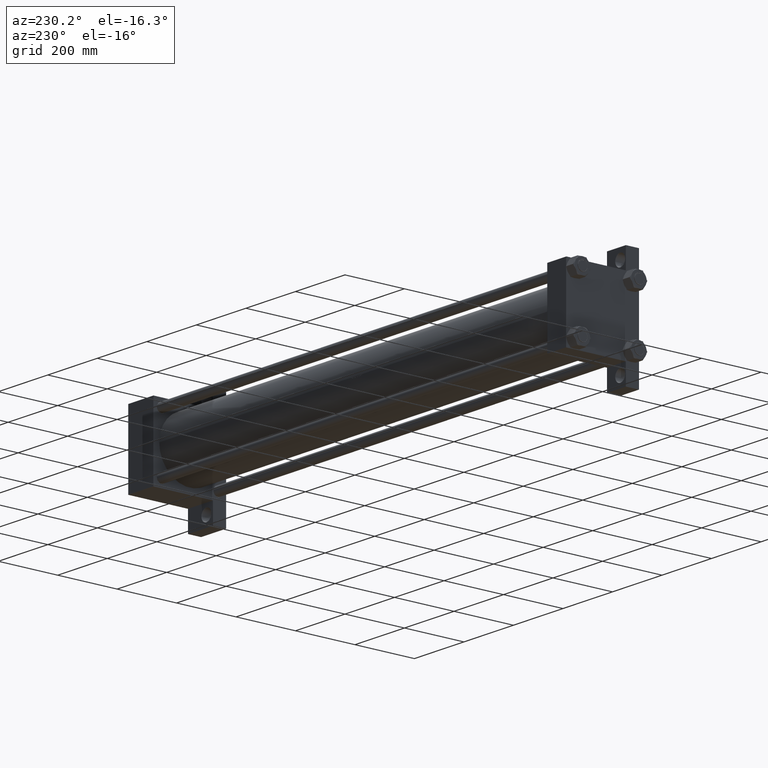
[diagram: clean part render]
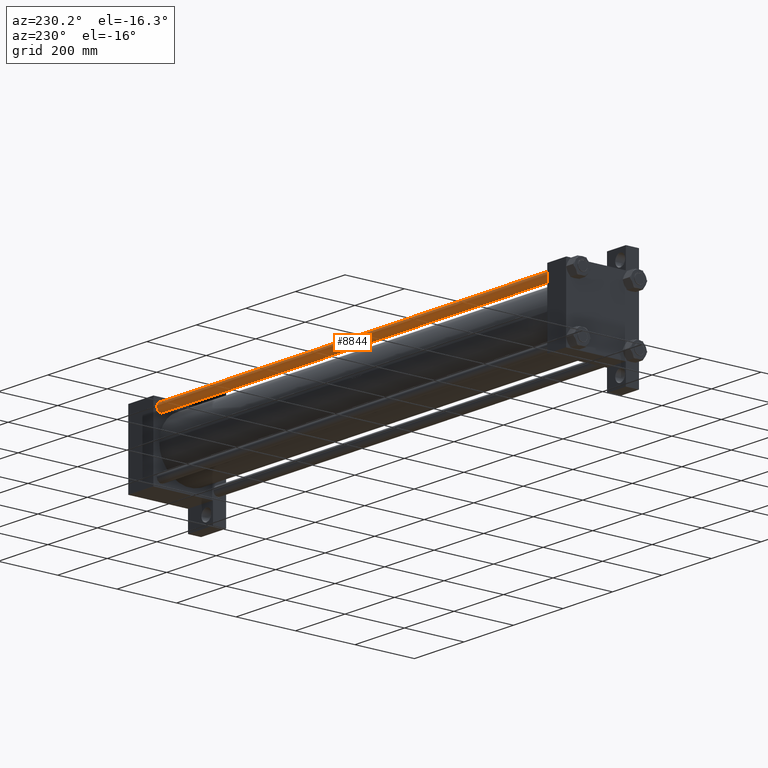
[diagram: same view with one face highlighted and labeled with its STEP entity id]
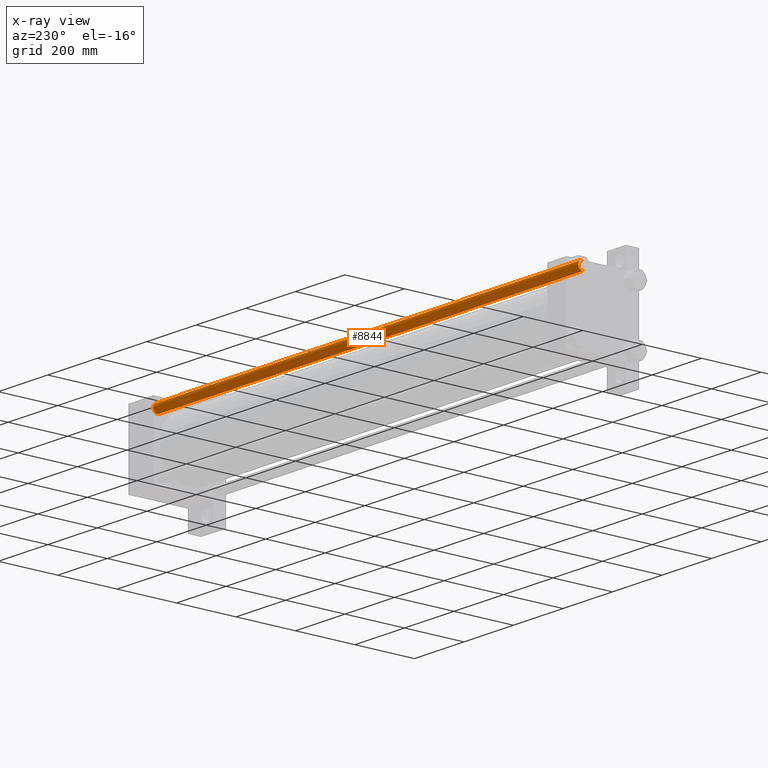
[diagram: x-ray of the same camera — body ghosted, the highlighted face saturated]
A machine part, auxiliary view. The second image highlights one B-rep face of the part: STEP entity #8844.
The next image is the same camera in x-ray: the body ghosted, the highlighted face saturated — about 0% of this face is hidden behind the body in this view.
In plain terms, the highlighted cylindrical surface (edge-blend (fillet) strip) has radius 15 mm, axis along (-1, -0, -0).
Its self-contained STEP definition (entity closure, byte-faithful):
#358 = DIRECTION ( 'NONE',  ( -0.000000000000000000, -0.000000000000000000, -1.000000000000000000 ) ) ;
#565 = CARTESIAN_POINT ( 'NONE',  ( 0.000000000000000000, 0.000000000000000000, 0.5000000000001669775 ) ) ;
#1258 = DIRECTION ( 'NONE',  ( 0.000000000000000000, 0.000000000000000000, -1.000000000000000000 ) ) ;
#3168 = DIRECTION ( 'NONE',  ( -0.000000000000000000, -0.000000000000000000, -1.000000000000000000 ) ) ;
#3406 = ORIENTED_EDGE ( 'NONE', *, *, #24542, .T. ) ;
#7021 = VERTEX_POINT ( 'NONE', #31288 ) ;
#8844 = ADVANCED_FACE ( 'NONE', ( #28538 ), #20252, .T. ) ;
#8941 = EDGE_CURVE ( 'NONE', #20880, #7021, #43850, .T. ) ;
#12130 = CIRCLE ( 'NONE', #42422, 15.00000000000000000 ) ;
#13640 = ORIENTED_EDGE ( 'NONE', *, *, #42656, .T. ) ;
#16608 = DIRECTION ( 'NONE',  ( -0.000000000000000000, -0.000000000000000000, -1.000000000000000000 ) ) ;
#17911 = VERTEX_POINT ( 'NONE', #45234 ) ;
#18854 = ORIENTED_EDGE ( 'NONE', *, *, #8941, .F. ) ;
#20252 = CYLINDRICAL_SURFACE ( 'NONE', #25931, 15.00000000000000000 ) ;
#20880 = VERTEX_POINT ( 'NONE', #33938 ) ;
#21472 = CARTESIAN_POINT ( 'NONE',  ( -15.00000000000000000, 0.000000000000000000, 1718.000000000000000 ) ) ;
#24001 = EDGE_CURVE ( 'NONE', #20880, #17911, #35872, .T. ) ;
#24542 = EDGE_CURVE ( 'NONE', #17911, #33193, #41252, .T. ) ;
#25931 = AXIS2_PLACEMENT_3D ( 'NONE', #47033, #16608, #43127 ) ;
#26162 = DIRECTION ( 'NONE',  ( -0.000000000000000000, -0.000000000000000000, 1.000000000000000000 ) ) ;
#26560 = ORIENTED_EDGE ( 'NONE', *, *, #24001, .T. ) ;
#26685 = VECTOR ( 'NONE', #3168, 1000.000000000000000 ) ;
#28538 = FACE_OUTER_BOUND ( 'NONE', #30625, .T. ) ;
#30625 = EDGE_LOOP ( 'NONE', ( #26560, #3406, #13640, #18854 ) ) ;
#31288 = CARTESIAN_POINT ( 'NONE',  ( -15.00000000000000000, 0.000000000000000000, 0.5000000000001669775 ) ) ;
#33193 = VERTEX_POINT ( 'NONE', #39234 ) ;
#33698 = DIRECTION ( 'NONE',  ( 1.000000000000000000, 0.000000000000000000, 0.000000000000000000 ) ) ;
#33938 = CARTESIAN_POINT ( 'NONE',  ( -15.00000000000000000, 0.000000000000000000, 1717.499999999999773 ) ) ;
#34844 = CARTESIAN_POINT ( 'NONE',  ( 0.000000000000000000, 0.000000000000000000, 1717.499999999999773 ) ) ;
#35872 = CIRCLE ( 'NONE', #42087, 15.00000000000000000 ) ;
#38511 = DIRECTION ( 'NONE',  ( 1.000000000000000000, 0.000000000000000000, 0.000000000000000000 ) ) ;
#39234 = CARTESIAN_POINT ( 'NONE',  ( 15.00000000000000000, 1.836970198721029589E-15, 0.5000000000001669775 ) ) ;
#41252 = LINE ( 'NONE', #41506, #47559 ) ;
#41506 = CARTESIAN_POINT ( 'NONE',  ( 15.00000000000000000, 1.836970198721029589E-15, 1718.000000000000000 ) ) ;
#42087 = AXIS2_PLACEMENT_3D ( 'NONE', #34844, #1258, #38511 ) ;
#42422 = AXIS2_PLACEMENT_3D ( 'NONE', #565, #26162, #33698 ) ;
#42656 = EDGE_CURVE ( 'NONE', #33193, #7021, #12130, .T. ) ;
#43127 = DIRECTION ( 'NONE',  ( -1.000000000000000000, 0.000000000000000000, 0.000000000000000000 ) ) ;
#43850 = LINE ( 'NONE', #21472, #26685 ) ;
#45234 = CARTESIAN_POINT ( 'NONE',  ( 15.00000000000000000, 1.836970198721029589E-15, 1717.499999999999773 ) ) ;
#47033 = CARTESIAN_POINT ( 'NONE',  ( 0.000000000000000000, 0.000000000000000000, 1718.000000000000000 ) ) ;
#47559 = VECTOR ( 'NONE', #358, 1000.000000000000000 ) ;